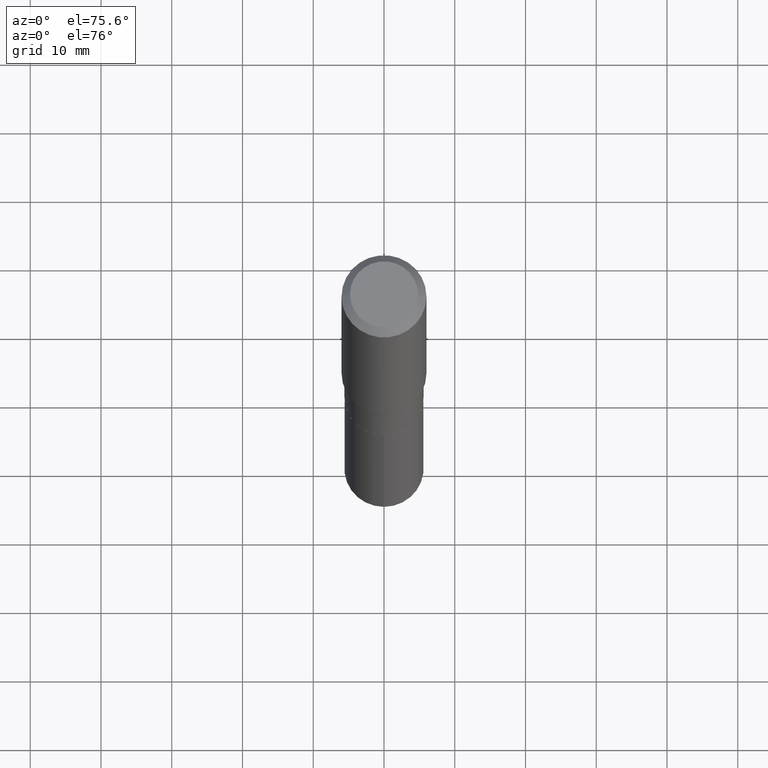
[diagram: clean part render]
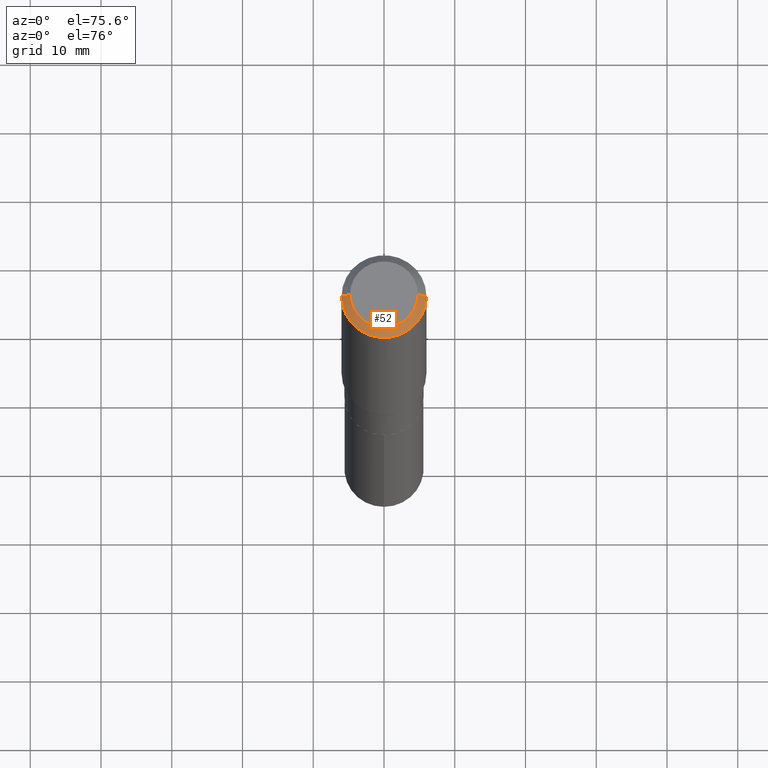
[diagram: same view with one face highlighted and labeled with its STEP entity id]
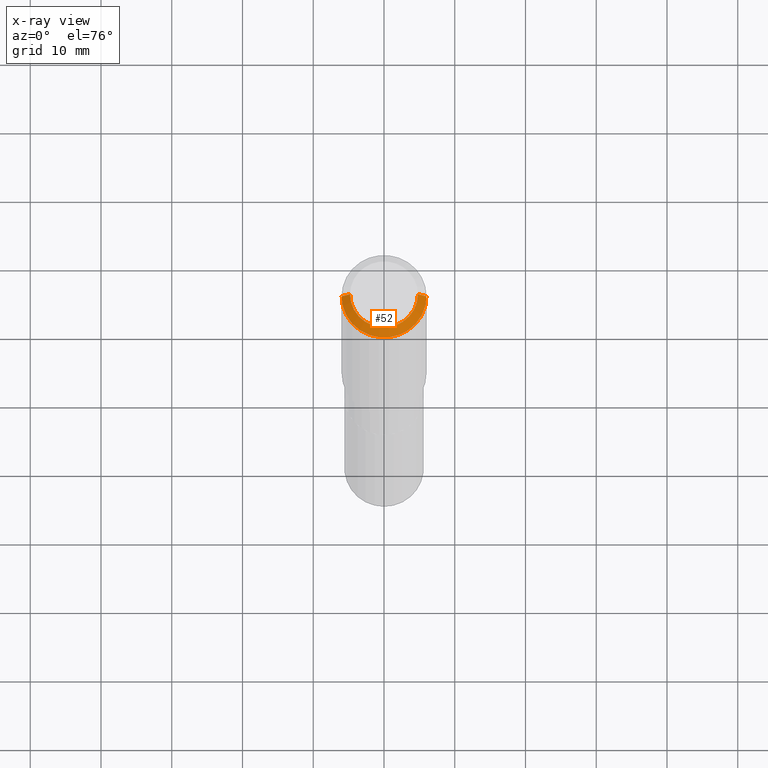
[diagram: x-ray of the same camera — body ghosted, the highlighted face saturated]
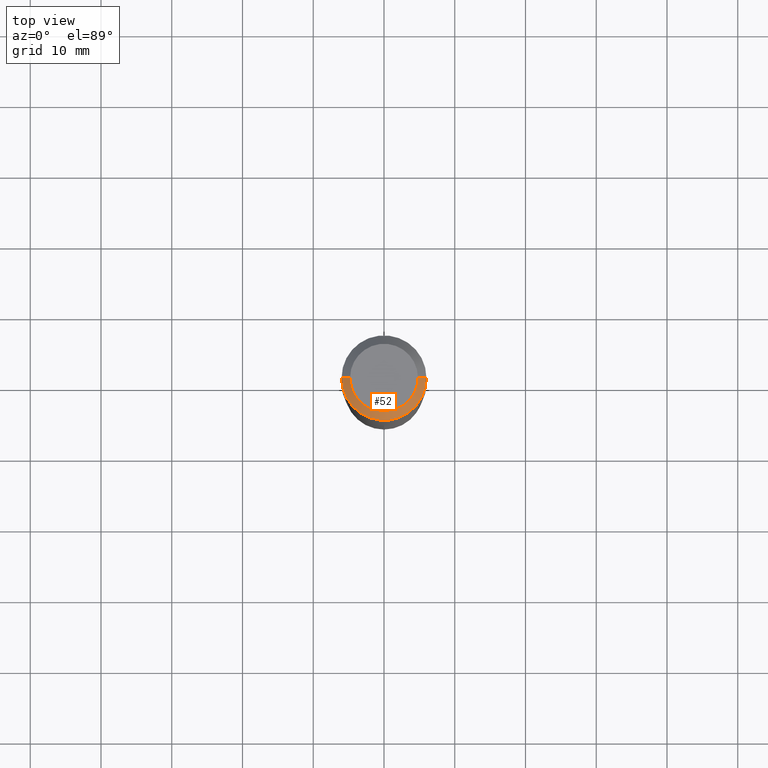
[diagram: same view with one face highlighted and labeled with its STEP entity id]
A machine part, auxiliary view. The second image highlights one B-rep face of the part: STEP entity #52.
The next image is the same camera in x-ray: the body ghosted, the highlighted face saturated — about 0% of this face is hidden behind the body in this view.
A second angle (top view) of the same face is appended — the face is thin or edge-on in the first view.
In plain terms, the highlighted conical surface has half-angle 45 deg.
Its self-contained STEP definition (entity closure, byte-faithful):
#32 = CIRCLE ( 'NONE', #482, 0.1889600000000000168 ) ;
#33 = DIRECTION ( 'NONE',  ( -2.445468806185136597E-29, 3.491481338843145583E-15, 1.000000000000000000 ) ) ;
#35 = DIRECTION ( 'NONE',  ( 1.000000000000000000, -6.982962677686266711E-15, 0.000000000000000000 ) ) ;
#52 = ADVANCED_FACE ( 'NONE', ( #359 ), #84, .T. ) ;
#84 = CONICAL_SURFACE ( 'NONE', #357, 0.2361999999999999933, 0.7853981633974452814 ) ;
#111 = DIRECTION ( 'NONE',  ( 1.000000000000000000, -6.982962677686266711E-15, 4.876185090822587894E-29 ) ) ;
#112 = EDGE_CURVE ( 'NONE', #142, #450, #32, .T. ) ;
#117 = LINE ( 'NONE', #408, #349 ) ;
#125 = DIRECTION ( 'NONE',  ( 0.7071067811865453523, -7.319954787623248157E-15, -0.7071067811865496822 ) ) ;
#129 = EDGE_CURVE ( 'NONE', #142, #196, #117, .T. ) ;
#142 = VERTEX_POINT ( 'NONE', #298 ) ;
#147 = CARTESIAN_POINT ( 'NONE',  ( 1.155239464041865506E-30, -1.649375784469511859E-16, -0.04724000000000028177 ) ) ;
#162 = ORIENTED_EDGE ( 'NONE', *, *, #112, .F. ) ;
#165 = CARTESIAN_POINT ( 'NONE',  ( 0.2361999999999999933, -1.814313362916447440E-15, -0.04724000000000028177 ) ) ;
#196 = VERTEX_POINT ( 'NONE', #303 ) ;
#214 = DIRECTION ( 'NONE',  ( 2.445468806185136597E-29, -3.491481338843145583E-15, -1.000000000000000000 ) ) ;
#246 = VECTOR ( 'NONE', #125, 39.37007874015748143 ) ;
#248 = EDGE_CURVE ( 'NONE', #196, #299, #404, .T. ) ;
#253 = ORIENTED_EDGE ( 'NONE', *, *, #248, .T. ) ;
#265 = EDGE_CURVE ( 'NONE', #450, #299, #445, .T. ) ;
#296 = DIRECTION ( 'NONE',  ( -0.7071067811865453523, 2.468850131082234184E-15, -0.7071067811865496822 ) ) ;
#298 = CARTESIAN_POINT ( 'NONE',  ( -0.1889600000000000168, 1.401969416799070942E-15, 3.855188123706346622E-18 ) ) ;
#299 = VERTEX_POINT ( 'NONE', #165 ) ;
#303 = CARTESIAN_POINT ( 'NONE',  ( -0.2361999999999999933, -1.491421934196697942E-15, -0.04724000000000028177 ) ) ;
#307 = EDGE_LOOP ( 'NONE', ( #317, #162, #385, #253 ) ) ;
#309 = CARTESIAN_POINT ( 'NONE',  ( 0.2361999999999999933, -1.785387205520586782E-15, -0.04724000000000028177 ) ) ;
#317 = ORIENTED_EDGE ( 'NONE', *, *, #265, .F. ) ;
#326 = AXIS2_PLACEMENT_3D ( 'NONE', #147, #33, #35 ) ;
#349 = VECTOR ( 'NONE', #296, 39.37007874015748143 ) ;
#357 = AXIS2_PLACEMENT_3D ( 'NONE', #392, #214, #473 ) ;
#359 = FACE_OUTER_BOUND ( 'NONE', #307, .T. ) ;
#374 = DIRECTION ( 'NONE',  ( -2.445468806185136597E-29, 3.491481338843145583E-15, 1.000000000000000000 ) ) ;
#385 = ORIENTED_EDGE ( 'NONE', *, *, #129, .T. ) ;
#392 = CARTESIAN_POINT ( 'NONE',  ( 1.155239464041865506E-30, -1.649375784469511859E-16, -0.04724000000000028177 ) ) ;
#404 = CIRCLE ( 'NONE', #326, 0.2361999999999999933 ) ;
#408 = CARTESIAN_POINT ( 'NONE',  ( -0.2361999999999999933, 1.484438206022545019E-15, -0.04724000000000028177 ) ) ;
#445 = LINE ( 'NONE', #309, #246 ) ;
#447 = CARTESIAN_POINT ( 'NONE',  ( -9.427742298522546243E-47, 1.346031739168365344E-32, 3.855188123715862256E-18 ) ) ;
#450 = VERTEX_POINT ( 'NONE', #464 ) ;
#464 = CARTESIAN_POINT ( 'NONE',  ( 0.1889600000000000168, -1.540873453589747738E-15, 3.855188123725863225E-18 ) ) ;
#473 = DIRECTION ( 'NONE',  ( -1.000000000000000000, 6.982962677686266711E-15, 0.000000000000000000 ) ) ;
#482 = AXIS2_PLACEMENT_3D ( 'NONE', #447, #374, #111 ) ;